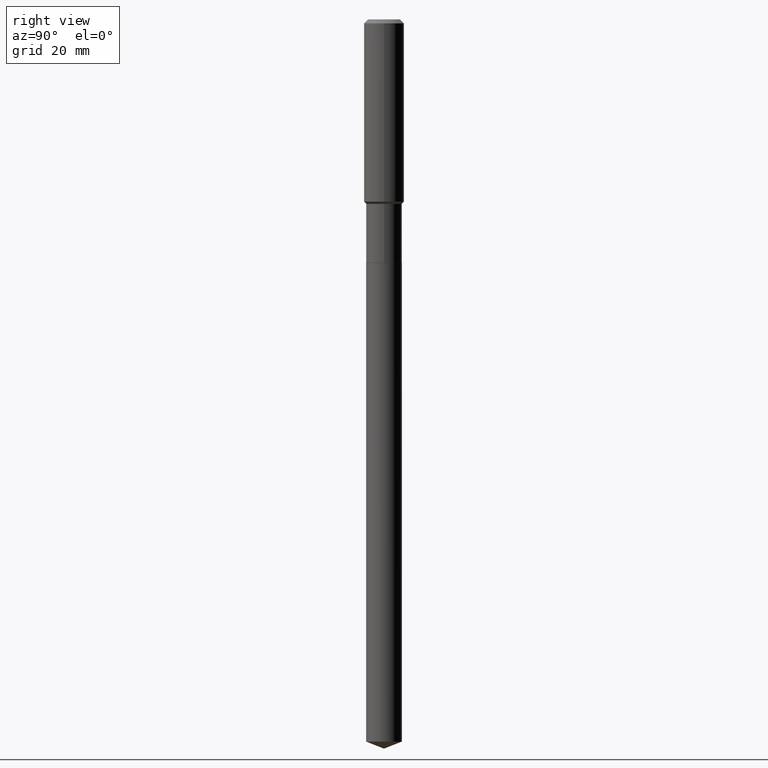
[diagram: clean part render]
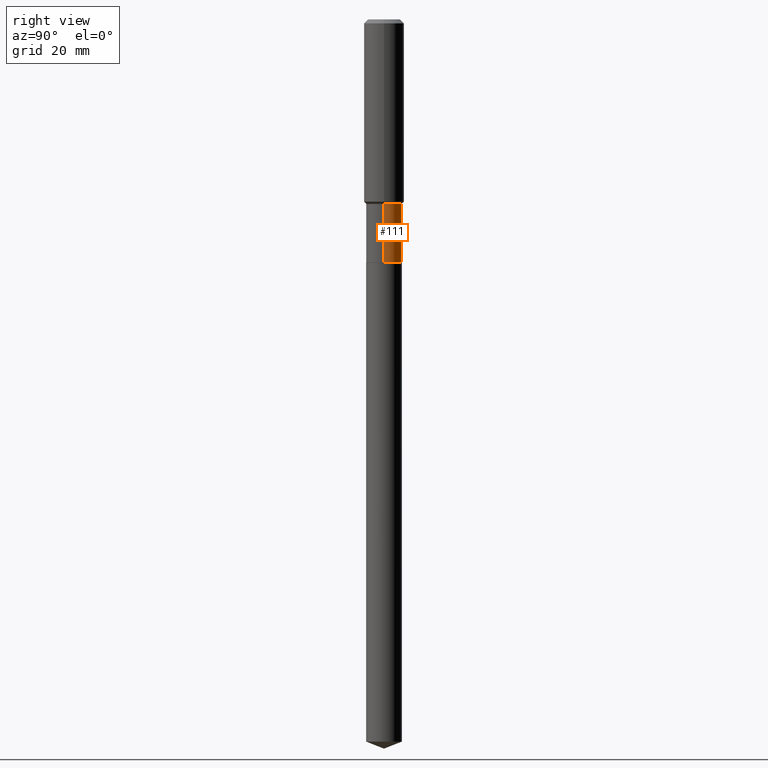
[diagram: same view with one face highlighted and labeled with its STEP entity id]
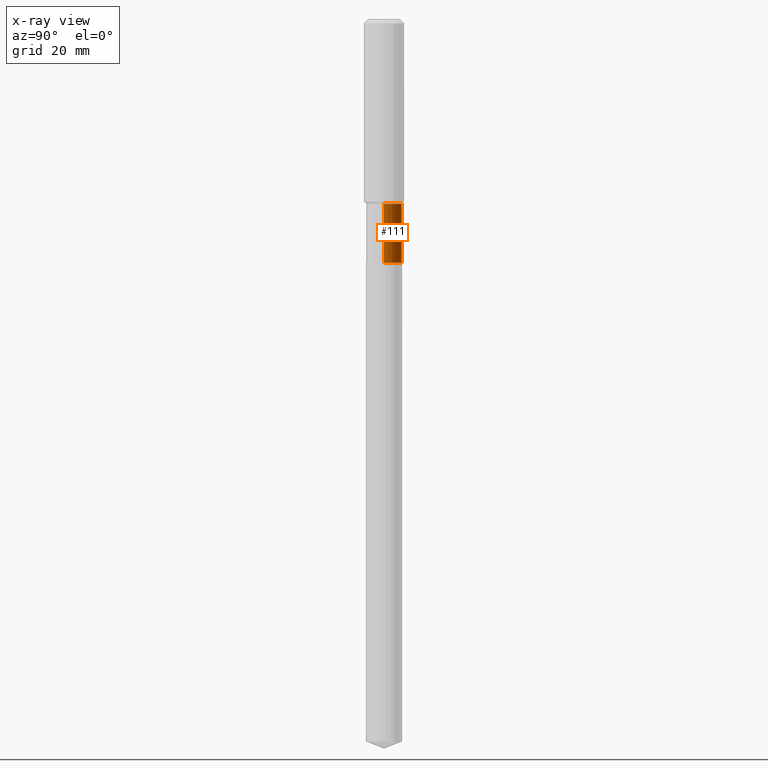
[diagram: x-ray of the same camera — body ghosted, the highlighted face saturated]
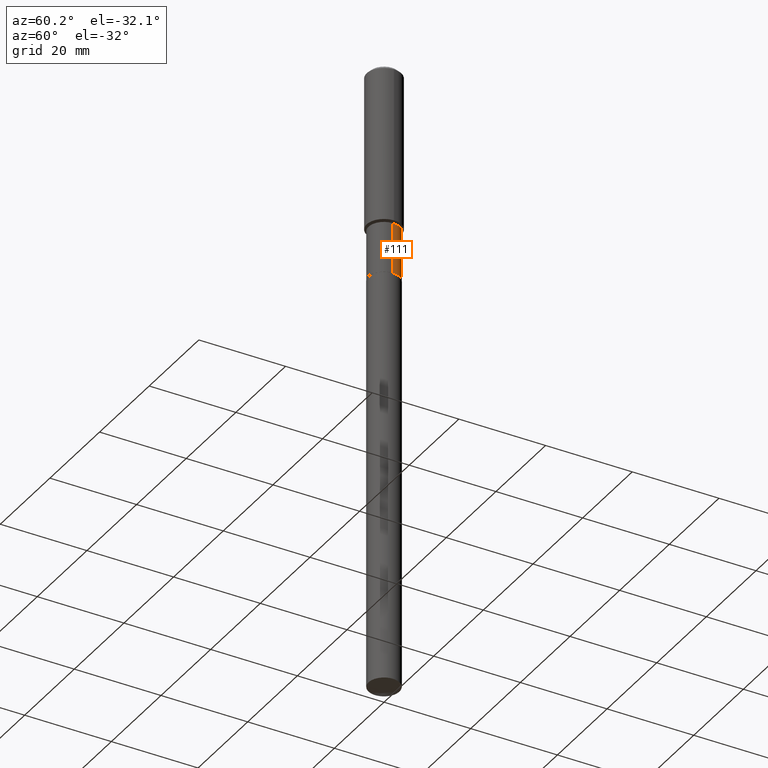
[diagram: same view with one face highlighted and labeled with its STEP entity id]
A machine part, right view. The second image highlights one B-rep face of the part: STEP entity #111.
The next image is the same camera in x-ray: the body ghosted, the highlighted face saturated — about 0% of this face is hidden behind the body in this view.
A second angle (auxiliary view) of the same face is appended — the face is thin or edge-on in the first view.
In plain terms, the highlighted cylindrical surface (edge-blend (fillet) strip) has radius 3.5712 mm, axis along (-0, 0, 1).
Its self-contained STEP definition (entity closure, byte-faithful):
#13 = CIRCLE ( 'NONE', #161, 0.1406000000000000028 ) ;
#23 = DIRECTION ( 'NONE',  ( -2.445468806185136597E-29, 3.491481338843145583E-15, 1.000000000000000000 ) ) ;
#24 = CIRCLE ( 'NONE', #373, 0.1405999999999999472 ) ;
#28 = CYLINDRICAL_SURFACE ( 'NONE', #198, 0.1405999999999999750 ) ;
#37 = CARTESIAN_POINT ( 'NONE',  ( 0.1406000000000000028, -7.676370871580536837E-15, -1.917400000000000437 ) ) ;
#57 = VECTOR ( 'NONE', #294, 39.37007874015748143 ) ;
#63 = DIRECTION ( 'NONE',  ( 1.000000000000000000, -6.982962677686266711E-15, 4.876176775795935232E-29 ) ) ;
#70 = DIRECTION ( 'NONE',  ( -2.445468806185136877E-29, 3.491481338843145188E-15, 1.000000000000000000 ) ) ;
#78 = VERTEX_POINT ( 'NONE', #484 ) ;
#81 = ORIENTED_EDGE ( 'NONE', *, *, #190, .F. ) ;
#107 = CARTESIAN_POINT ( 'NONE',  ( -0.1406000000000000028, -4.886217858275305847E-15, -1.917400000000000437 ) ) ;
#111 = ADVANCED_FACE ( 'NONE', ( #485 ), #28, .T. ) ;
#113 = DIRECTION ( 'NONE',  ( 1.000000000000000000, -6.982962677686265133E-15, 0.000000000000000000 ) ) ;
#126 = DIRECTION ( 'NONE',  ( -2.445468806185136597E-29, 3.491481338843145583E-15, 1.000000000000000000 ) ) ;
#132 = CARTESIAN_POINT ( 'NONE',  ( 3.555222550431952011E-29, -5.075915570410165725E-15, -1.453800000000000203 ) ) ;
#161 = AXIS2_PLACEMENT_3D ( 'NONE', #189, #307, #113 ) ;
#178 = CARTESIAN_POINT ( 'NONE',  ( 0.1405999999999999750, -9.818045524826889086E-16, 6.855904546769083471E-30 ) ) ;
#189 = CARTESIAN_POINT ( 'NONE',  ( 4.688941888979381963E-29, -6.694566319097848520E-15, -1.917400000000000437 ) ) ;
#190 = EDGE_CURVE ( 'NONE', #196, #78, #24, .T. ) ;
#196 = VERTEX_POINT ( 'NONE', #358 ) ;
#198 = AXIS2_PLACEMENT_3D ( 'NONE', #371, #23, #63 ) ;
#243 = EDGE_CURVE ( 'NONE', #326, #78, #414, .T. ) ;
#247 = ORIENTED_EDGE ( 'NONE', *, *, #243, .T. ) ;
#253 = VECTOR ( 'NONE', #70, 39.37007874015748143 ) ;
#294 = DIRECTION ( 'NONE',  ( -2.445468806185136877E-29, 3.491481338843145188E-15, 1.000000000000000000 ) ) ;
#307 = DIRECTION ( 'NONE',  ( -2.445468806185136597E-29, 3.491481338843145583E-15, 1.000000000000000000 ) ) ;
#312 = VERTEX_POINT ( 'NONE', #37 ) ;
#326 = VERTEX_POINT ( 'NONE', #107 ) ;
#335 = EDGE_LOOP ( 'NONE', ( #490, #247, #81, #398 ) ) ;
#342 = CARTESIAN_POINT ( 'NONE',  ( -0.1405999999999999750, 9.990230864787006837E-16, -6.916022736898396338E-30 ) ) ;
#358 = CARTESIAN_POINT ( 'NONE',  ( 0.1405999999999999472, -6.057720122892854042E-15, -1.453800000000000203 ) ) ;
#360 = EDGE_CURVE ( 'NONE', #312, #196, #477, .T. ) ;
#371 = CARTESIAN_POINT ( 'NONE',  ( 0.000000000000000000, 0.000000000000000000, 0.000000000000000000 ) ) ;
#373 = AXIS2_PLACEMENT_3D ( 'NONE', #132, #126, #390 ) ;
#390 = DIRECTION ( 'NONE',  ( 1.000000000000000000, -6.982962677686268288E-15, 0.000000000000000000 ) ) ;
#398 = ORIENTED_EDGE ( 'NONE', *, *, #360, .F. ) ;
#414 = LINE ( 'NONE', #342, #253 ) ;
#458 = EDGE_CURVE ( 'NONE', #312, #326, #13, .T. ) ;
#477 = LINE ( 'NONE', #178, #57 ) ;
#484 = CARTESIAN_POINT ( 'NONE',  ( -0.1405999999999999472, -4.886217858275305847E-15, -1.453800000000000203 ) ) ;
#485 = FACE_OUTER_BOUND ( 'NONE', #335, .T. ) ;
#490 = ORIENTED_EDGE ( 'NONE', *, *, #458, .T. ) ;